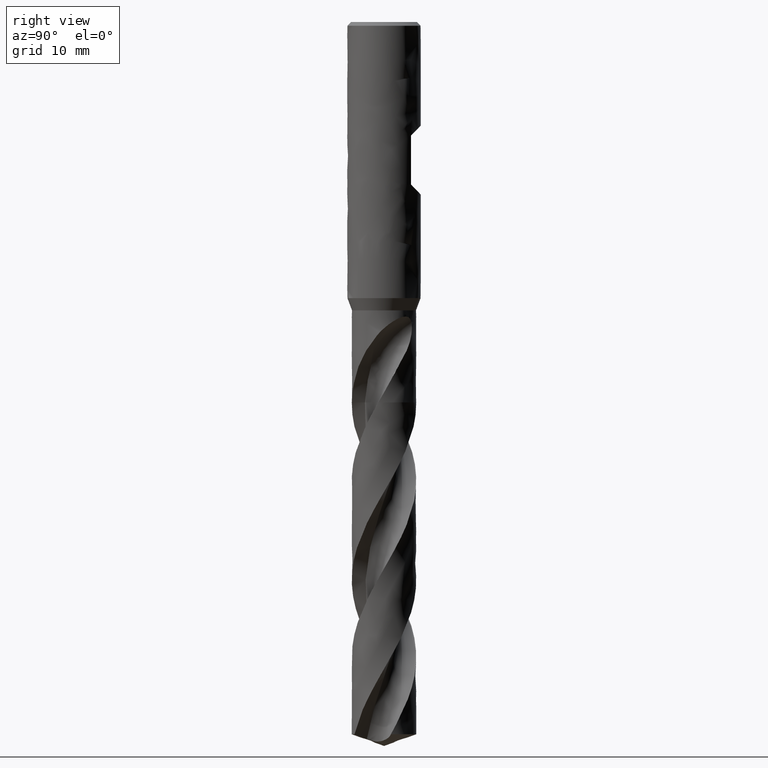
[diagram: clean part render]
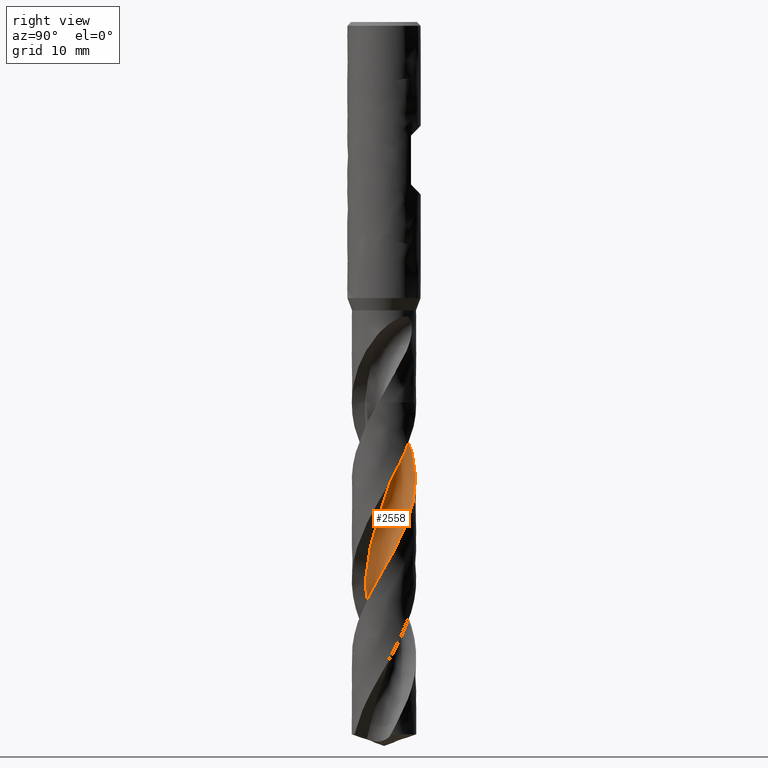
[diagram: same view with one face highlighted and labeled with its STEP entity id]
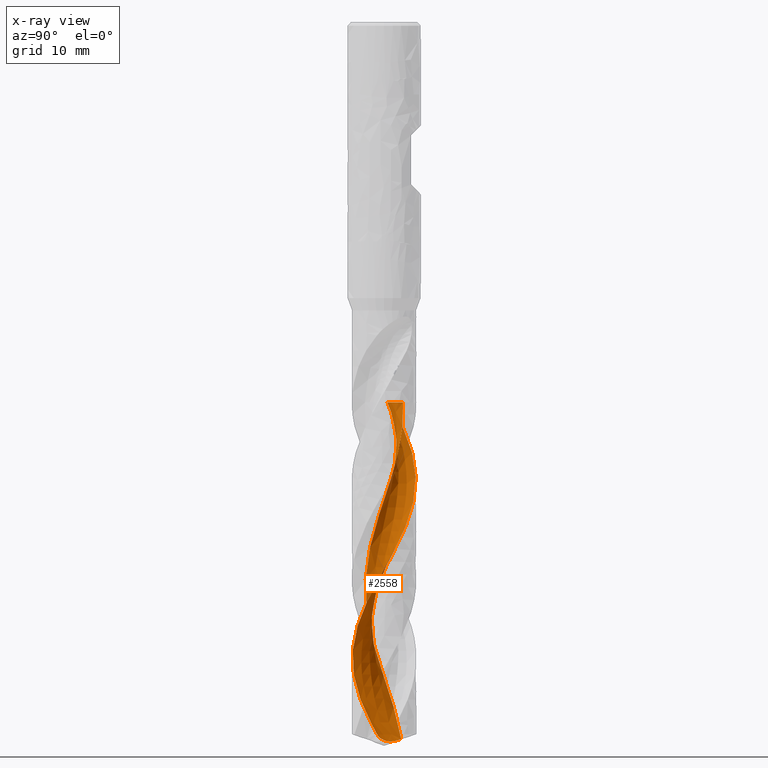
[diagram: x-ray of the same camera — body ghosted, the highlighted face saturated]
A machine part, right view. The second image highlights one B-rep face of the part: STEP entity #2558.
The next image is the same camera in x-ray: the body ghosted, the highlighted face saturated — about 0% of this face is hidden behind the body in this view.
In plain terms, the highlighted face is a freeform B-spline surface patch.
Its self-contained STEP definition (entity closure, byte-faithful):
#1854 = VERTEX_POINT('', #1855);
#1855 = CARTESIAN_POINT('', (-5.16869283402966, 0.920388172159186, -62.));
#1961 = VERTEX_POINT('', #1962);
#1962 = CARTESIAN_POINT('', (-0.511414322767349, 3.11733138550825, -62.));
#1968 = EDGE_CURVE('', #1961, #1854, #1969, .T.);
#1969 = B_SPLINE_CURVE_WITH_KNOTS('', 3, (#1970, #1971, #1972, #1973, #1974, #1975, #1976, #1977, #1978, #1979, #1980, #1981, #1982, #1983, #1984, #1985, #1986, #1987, #1988, #1989, #1990, #1991, #1992, #1993, #1994, #1995, #1996, #1997, #1998, #1999, #2000, #2001, #2002, #2003, #2004, #2005, #2006, #2007, #2008, #2009, #2010, #2011, #2012, #2013, #2014, #2015, #2016, #2017, #2018, #2019, #2020, #2021, #2022, #2023, #2024, #2025, #2026, #2027, #2028, #2029, #2030, #2031, #2032, #2033, #2034, #2035, #2036), .UNSPECIFIED., .F., .U., (4, 3, 3, 3, 3, 3, 3, 3, 3, 3, 3, 3, 3, 3, 3, 3, 3, 3, 3, 3, 3, 3, 4), (0., 0.297281239322821, 0.594216793688359, 0.890814894886685, 1.18708203724347, 1.48302310571936, 1.77864147066501, 2.07393905318299, 2.3689163637792, 2.66357251590869, 2.957905215056, 3.01622894029931, 3.05513527343747, 3.35239642316347, 3.64931240996256, 3.94589136181939, 4.24213967759422, 4.53806215307657, 4.83366207396016, 5.12894127961066, 5.42390020024278, 5.7185378690539, 6.01135604850266), .UNSPECIFIED.);
#1970 = CARTESIAN_POINT('', (-0.51141432276735, 3.11733138550824, -62.));
#1971 = CARTESIAN_POINT('', (-0.529186559039711, 3.01984436995447, -62.));
#1972 = CARTESIAN_POINT('', (-0.551565366921387, 2.92308632096025, -62.));
#1973 = CARTESIAN_POINT('', (-0.57840300758802, 2.8276960089409, -62.));
#1974 = CARTESIAN_POINT('', (-0.605209440874435, 2.7324166188082, -62.));
#1975 = CARTESIAN_POINT('', (-0.636523206984963, 2.63829247680013, -62.));
#1976 = CARTESIAN_POINT('', (-0.672138060620712, 2.5459435230968, -62.));
#1977 = CARTESIAN_POINT('', (-0.707712439665317, 2.45369951959716, -62.));
#1978 = CARTESIAN_POINT('', (-0.747656083378586, 2.36302449028576, -62.));
#1979 = CARTESIAN_POINT('', (-0.791706503196861, 2.27451430364103, -62.));
#1980 = CARTESIAN_POINT('', (-0.835707769376413, 2.18610288104341, -62.));
#1981 = CARTESIAN_POINT('', (-0.883902854240644, 2.09965812263391, -62.));
#1982 = CARTESIAN_POINT('', (-0.935975750361248, 2.015746832805, -62.));
#1983 = CARTESIAN_POINT('', (-0.98799133465445, 1.9319278963829, -62.));
#1984 = CARTESIAN_POINT('', (-1.04398967810335, 1.85045395028763, -62.));
#1985 = CARTESIAN_POINT('', (-1.10360441502624, 1.77185803274792, -62.));
#1986 = CARTESIAN_POINT('', (-1.16315414614863, 1.69334781869027, -62.));
#1987 = CARTESIAN_POINT('', (-1.22644202479267, 1.61753841116378, -62.));
#1988 = CARTESIAN_POINT('', (-1.29305489498275, 1.54492470919806, -62.));
#1989 = CARTESIAN_POINT('', (-1.3595954819836, 1.472389802065, -62.));
#1990 = CARTESIAN_POINT('', (-1.42959839312361, 1.4028860705785, -62.));
#1991 = CARTESIAN_POINT('', (-1.50260762498313, 1.33686626647017, -62.));
#1992 = CARTESIAN_POINT('', (-1.57553767296719, 1.27091806568943, -62.));
#1993 = CARTESIAN_POINT('', (-1.65162560854623, 1.20830325957225, -62.));
#1994 = CARTESIAN_POINT('', (-1.73037686285508, 1.14942884212326, -62.));
#1995 = CARTESIAN_POINT('', (-1.80904237622326, 1.09061852457944, -62.));
#1996 = CARTESIAN_POINT('', (-1.8905355613851, 1.03541322482452, -62.));
#1997 = CARTESIAN_POINT('', (-1.97432786648437, 0.984170995665014, -62.));
#1998 = CARTESIAN_POINT('', (-2.05802819023259, 0.932985016652389, -62.));
#1999 = CARTESIAN_POINT('', (-2.14420323503588, 0.885642914830787, -62.));
#2000 = CARTESIAN_POINT('', (-2.23229530766461, 0.842451070889916, -62.));
#2001 = CARTESIAN_POINT('', (-2.24975126092769, 0.833892357413441, -62.));
#2002 = CARTESIAN_POINT('', (-2.26728679523967, 0.825494080506892, -62.));
#2003 = CARTESIAN_POINT('', (-2.28489744765282, 0.817258377605598, -62.));
#2004 = CARTESIAN_POINT('', (-2.29664508391419, 0.811764541274533, -62.));
#2005 = CARTESIAN_POINT('', (-2.30842669954178, 0.806342786166937, -62.));
#2006 = CARTESIAN_POINT('', (-2.32024096017541, 0.80099372633902, -62.));
#2007 = CARTESIAN_POINT('', (-2.41050700212401, 0.760124604369777, -62.));
#2008 = CARTESIAN_POINT('', (-2.50279521659244, 0.723457484164053, -62.));
#2009 = CARTESIAN_POINT('', (-2.59649642400792, 0.691234399450103, -62.));
#2010 = CARTESIAN_POINT('', (-2.69008883085181, 0.65904873036966, -62.));
#2011 = CARTESIAN_POINT('', (-2.78529651375301, 0.631226066010134, -62.));
#2012 = CARTESIAN_POINT('', (-2.8814924783949, 0.607949633731912, -62.));
#2013 = CARTESIAN_POINT('', (-2.97757924918119, 0.584699622971418, -62.));
#2014 = CARTESIAN_POINT('', (-3.07486262214045, 0.56593455567992, -62.));
#2015 = CARTESIAN_POINT('', (-3.1727033846562, 0.551777730088107, -62.));
#2016 = CARTESIAN_POINT('', (-3.27043507103496, 0.537636686996428, -62.));
#2017 = CARTESIAN_POINT('', (-3.36893659595095, 0.528062674143817, -62.));
#2018 = CARTESIAN_POINT('', (-3.46756218267713, 0.523118458829464, -62.));
#2019 = CARTESIAN_POINT('', (-3.56607929219579, 0.518179681603629, -62.));
#2020 = CARTESIAN_POINT('', (-3.66493512691172, 0.51784972575304, -62.));
#2021 = CARTESIAN_POINT('', (-3.76348300980208, 0.522130749722537, -62.));
#2022 = CARTESIAN_POINT('', (-3.86192347579966, 0.52640710738892, -62.));
#2023 = CARTESIAN_POINT('', (-3.9602709637005, 0.535293686049394, -62.));
#2024 = CARTESIAN_POINT('', (-4.05788352134368, 0.548732479561695, -62.));
#2025 = CARTESIAN_POINT('', (-4.1553901728889, 0.562156692468626, -62.));
#2026 = CARTESIAN_POINT('', (-4.2523752998087, 0.580152386835794, -62.));
#2027 = CARTESIAN_POINT('', (-4.34820721331354, 0.602602352130478, -62.));
#2028 = CARTESIAN_POINT('', (-4.44393517934904, 0.625027966277472, -62.));
#2029 = CARTESIAN_POINT('', (-4.538719932175, 0.65194678115691, -62.));
#2030 = CARTESIAN_POINT('', (-4.63194545097396, 0.683183847213586, -62.));
#2031 = CARTESIAN_POINT('', (-4.7250694340485, 0.714386891704371, -62.));
#2032 = CARTESIAN_POINT('', (-4.81683899690909, 0.749966252850298, -62.));
#2033 = CARTESIAN_POINT('', (-4.90665901129473, 0.78969119746855, -62.));
#2034 = CARTESIAN_POINT('', (-4.99592435607089, 0.82917082683419, -62.));
#2035 = CARTESIAN_POINT('', (-5.08345583027466, 0.872829745633427, -62.));
#2036 = CARTESIAN_POINT('', (-5.16869283366124, 0.920388172819487, -62.));
#2148 = EDGE_CURVE('', #2149, #1854, #2151, .T.);
#2149 = VERTEX_POINT('', #2150);
#2150 = CARTESIAN_POINT('', (-4.2160817945425, 3.12844279182588, -66.2069655611149));
#2151 = B_SPLINE_CURVE_WITH_KNOTS('', 3, (#2152, #2153, #2154, #2155, #2156, #2157, #2158, #2159, #2160, #2161, #2162, #2163, #2164, #2165, #2166, #2167, #2168, #2169, #2170), .UNSPECIFIED., .F., .U., (4, 3, 3, 3, 3, 3, 4), (0., 0.996962139515723, 1.99364170083914, 2.99004708487693, 3.98615731582775, 4.28158842762479, 4.85609640100197), .UNSPECIFIED.);
#2152 = CARTESIAN_POINT('', (-4.21608179454249, 3.12844279182589, -66.2069655611149));
#2153 = CARTESIAN_POINT('', (-4.31498788157669, 2.99515086972207, -65.9190629632584));
#2154 = CARTESIAN_POINT('', (-4.40760196109266, 2.85711449780675, -65.6310878701483));
#2155 = CARTESIAN_POINT('', (-4.49345220451459, 2.71502988671266, -65.3432011643113));
#2156 = CARTESIAN_POINT('', (-4.57927811460868, 2.57298554797291, -65.0553960568637));
#2157 = CARTESIAN_POINT('', (-4.65839128829379, 2.42681640480214, -64.7675174718451));
#2158 = CARTESIAN_POINT('', (-4.73038496939341, 2.27726986572447, -64.4797203151252));
#2159 = CARTESIAN_POINT('', (-4.80235884570036, 2.12776446551004, -64.1920023287287));
#2160 = CARTESIAN_POINT('', (-4.86726117376034, 1.97479523071185, -63.9042077677993));
#2161 = CARTESIAN_POINT('', (-4.92477063174782, 1.81910258772656, -63.6165166027939));
#2162 = CARTESIAN_POINT('', (-4.98226305440579, 1.66345606368536, -63.3289106570544));
#2163 = CARTESIAN_POINT('', (-5.03239520643846, 1.50499822601956, -63.0412474931458));
#2164 = CARTESIAN_POINT('', (-5.07488446156996, 1.34463664300591, -62.7536240848049));
#2165 = CARTESIAN_POINT('', (-5.08748612702113, 1.29707584171383, -62.6683193658444));
#2166 = CARTESIAN_POINT('', (-5.09941763542269, 1.24934360747475, -62.5830084273118));
#2167 = CARTESIAN_POINT('', (-5.110674765344, 1.20145888105921, -62.4976968989545));
#2168 = CARTESIAN_POINT('', (-5.13256586157215, 1.10834019440032, -62.3317964527754));
#2169 = CARTESIAN_POINT('', (-5.15191339942163, 1.01461770057016, -62.1658689678368));
#2170 = CARTESIAN_POINT('', (-5.16869283402966, 0.920388172159186, -62.));
#2173 = VERTEX_POINT('', #2174);
#2174 = CARTESIAN_POINT('', (-4.84328830628847, -2.02609436655092, -114.411148209227));
#2361 = EDGE_CURVE('', #2173, #2362, #2364, .T.);
#2362 = VERTEX_POINT('', #2363);
#2363 = CARTESIAN_POINT('', (-5.12901679958836, -1.12057425882463, -116.089156270102));
#2364 = B_SPLINE_CURVE_WITH_KNOTS('', 3, (#2365, #2366, #2367, #2368, #2369, #2370, #2371), .UNSPECIFIED., .F., .U., (4, 3, 4), (0., 0.996303851417017, 1.92851427668865), .UNSPECIFIED.);
#2365 = CARTESIAN_POINT('', (-4.84328830628849, -2.02609436655087, -114.411148209227));
#2366 = CARTESIAN_POINT('', (-4.90648284031596, -1.87503064872532, -114.700072882336));
#2367 = CARTESIAN_POINT('', (-4.96261334637962, -1.72098062366997, -114.989082592419));
#2368 = CARTESIAN_POINT('', (-5.01140923554839, -1.56469724670904, -115.278021565199));
#2369 = CARTESIAN_POINT('', (-5.05706602642482, -1.41846776752714, -115.548372746026));
#2370 = CARTESIAN_POINT('', (-5.09632360177884, -1.27021535532205, -115.818793437661));
#2371 = CARTESIAN_POINT('', (-5.12901679958836, -1.12057425882463, -116.089156270102));
#2558 = ADVANCED_FACE('', (#2559), #2813, .T.);
#2559 = FACE_OUTER_BOUND('', #2560, .T.);
#2560 = EDGE_LOOP('', (#2561, #2562, #2627, #2705, #2754, #2755, #2812));
#2561 = ORIENTED_EDGE('', *, *, #1968, .F.);
#2562 = ORIENTED_EDGE('', *, *, #2563, .F.);
#2563 = EDGE_CURVE('', #2564, #1961, #2566, .T.);
#2564 = VERTEX_POINT('', #2565);
#2565 = CARTESIAN_POINT('', (-1.43173699643083, 2.798172611918, -116.855972548912));
#2566 = (
   BOUNDED_CURVE ()
   B_SPLINE_CURVE (3, (#2567, #2568, #2569, #2570, #2571, #2572, #2573, #2574, #2575, #2576, #2577, #2578, #2579, #2580, #2581, #2582, #2583, #2584, #2585, #2586, #2587, #2588, #2589, #2590, #2591, #2592, #2593, #2594, #2595, #2596, #2597, #2598, #2599, #2600, #2601, #2602, #2603, #2604, #2605, #2606, #2607, #2608, #2609, #2610, #2611, #2612, #2613, #2614, #2615, #2616, #2617, #2618, #2619, #2620, #2621, #2622, #2623, #2624, #2625, #2626), .UNSPECIFIED., .F., .U.)
   B_SPLINE_CURVE_WITH_KNOTS ((4, 1, 1, 1, 1, 1, 1, 1, 1, 1, 1, 1, 1, 1, 1, 1, 1, 1, 1, 1, 1, 1, 1, 1, 1, 1, 1, 1, 1, 1, 1, 1, 1, 1, 1, 1, 1, 1, 1, 1, 1, 1, 1, 1, 1, 1, 1, 1, 1, 1, 1, 1, 1, 1, 1, 1, 1, 4), (1.19402745108839, 1.94583333333333, 2.91875, 3.89166666666667, 4.86458333333333, 5.8375, 6.81041666666667, 7.78333333333333, 8.75625, 9.72916666666667, 10.7020833333333, 11.675, 12.6479166666667, 13.6208333333333, 14.59375, 15.5666666666667, 16.5395833333333, 17.5125, 18.4854166666667, 19.4583333333333, 20.43125, 21.4041666666667, 22.3770833333333, 23.35, 24.3229166666667, 25.2958333333333, 26.26875, 27.2416666666667, 28.2145833333333, 29.1875, 30.1604166666667, 31.1333333333333, 32.10625, 33.0791666666667, 34.0520833333333, 35.025, 35.9979166666667, 36.9708333333333, 37.94375, 38.9166666666667, 39.8895833333333, 40.8625, 41.8354166666667, 42.8083333333333, 43.78125, 44.7541666666667, 45.7270833333333, 46.7, 47.6729166666667, 48.6458333333333, 49.61875, 50.5916666666667, 51.5645833333333, 52.5375, 53.5104166666667, 54.4833333333333, 55.45625, 56.05), .UNSPECIFIED.)
   CURVE ()
   GEOMETRIC_REPRESENTATION_ITEM ()
   RATIONAL_B_SPLINE_CURVE ((1., 1., 1., 1., 1., 1., 1., 1., 1., 1., 1., 1., 1., 1., 1., 1., 1., 1., 1., 1., 1., 1., 1., 1., 1., 1., 1., 1., 1., 1., 1., 1., 1., 1., 1., 1., 1., 1., 1., 1., 1., 1., 1., 1., 1., 1., 1., 1., 1., 1., 1., 1., 1., 1., 1., 1., 1., 1., 1., 1.))
   REPRESENTATION_ITEM ('')
);
#2567 = CARTESIAN_POINT('', (-1.43173699643083, 2.798172611918, -116.855972548912));
#2568 = CARTESIAN_POINT('', (-1.50708413934639, 2.75714332259, -116.605370588163));
#2569 = CARTESIAN_POINT('', (-1.67594040293153, 2.65610964579416, -116.030463071859));
#2570 = CARTESIAN_POINT('', (-1.92374487196312, 2.47451761707428, -115.13125));
#2571 = CARTESIAN_POINT('', (-2.16915056103738, 2.25159016984832, -114.158333333333));
#2572 = CARTESIAN_POINT('', (-2.38928230952023, 2.0047736307214, -113.185416666667));
#2573 = CARTESIAN_POINT('', (-2.5818642853802, 1.73687888481437, -112.2125));
#2574 = CARTESIAN_POINT('', (-2.74492629783282, 1.45092678953253, -111.239583333333));
#2575 = CARTESIAN_POINT('', (-2.87682417387054, 1.15011738335445, -110.266666666667));
#2576 = CARTESIAN_POINT('', (-2.97625501727196, 0.837794792105319, -109.29375));
#2577 = CARTESIAN_POINT('', (-3.04226931327047, 0.517411553480893, -108.320833333333));
#2578 = CARTESIAN_POINT('', (-3.07427921818677, 0.192491826561483, -107.347916666667));
#2579 = CARTESIAN_POINT('', (-3.07206312292206, -0.133405897940567, -106.375));
#2580 = CARTESIAN_POINT('', (-3.03576642532715, -0.456726274244995, -105.402083333333));
#2581 = CARTESIAN_POINT('', (-2.96589853468032, -0.773954371121447, -104.429166666667));
#2582 = CARTESIAN_POINT('', (-2.86332615443983, -1.08165236705711, -103.45625));
#2583 = CARTESIAN_POINT('', (-2.72926292903106, -1.37649530532678, -102.483333333333));
#2584 = CARTESIAN_POINT('', (-2.56525557432069, -1.65530555601511, -101.510416666667));
#2585 = CARTESIAN_POINT('', (-2.37316664522208, -1.9150856459814, -100.5375));
#2586 = CARTESIAN_POINT('', (-2.15515412569395, -2.15304913532314, -99.5645833333333));
#2587 = CARTESIAN_POINT('', (-1.91364805638878, -2.36664923922806, -98.5916666666667));
#2588 = CARTESIAN_POINT('', (-1.65132444300958, -2.55360491718454, -97.61875));
#2589 = CARTESIAN_POINT('', (-1.37107671383931, -2.7119241770747, -96.6458333333333));
#2590 = CARTESIAN_POINT('', (-1.07598501769604, -2.83992436947587, -95.6729166666667));
#2591 = CARTESIAN_POINT('', (-0.769283673551941, -2.93624927727874, -94.7));
#2592 = CARTESIAN_POINT('', (-0.454327100070884, -2.99988283722421, -93.7270833333333));
#2593 = CARTESIAN_POINT('', (-0.134554567229001, -3.03015936287652, -92.7541666666667));
#2594 = CARTESIAN_POINT('', (0.186545877126585, -3.02677017259165, -91.78125));
#2595 = CARTESIAN_POINT('', (0.505473945538053, -2.98976656090212, -90.8083333333333));
#2596 = CARTESIAN_POINT('', (0.818753749746397, -2.91955908711158, -89.8354166666667));
#2597 = CARTESIAN_POINT('', (1.12297017514259, -2.81691319046008, -88.8625));
#2598 = CARTESIAN_POINT('', (1.41480462870484, -2.68294117667065, -87.8895833333333));
#2599 = CARTESIAN_POINT('', (1.69106980438171, -2.51909065570416, -86.9166666666667));
#2600 = CARTESIAN_POINT('', (1.94874311930337, -2.32712954482485, -85.94375));
#2601 = CARTESIAN_POINT('', (2.18499848685136, -2.10912778430842, -84.9708333333333));
#2602 = CARTESIAN_POINT('', (2.39723610838152, -1.86743594501426, -83.9979166666667));
#2603 = CARTESIAN_POINT('', (2.58310998413933, -1.6046609373082, -83.025));
#2604 = CARTESIAN_POINT('', (2.74055286547302, -1.32363905919114, -82.0520833333333));
#2605 = CARTESIAN_POINT('', (2.86779839465158, -1.02740664770476, -81.0791666666667));
#2606 = CARTESIAN_POINT('', (2.96340020522656, -0.719168621509406, -80.10625));
#2607 = CARTESIAN_POINT('', (3.02624778471024, -0.402265223740003, -79.1333333333333));
#2608 = CARTESIAN_POINT('', (3.05557893212927, -0.080137292642406, -78.1604166666667));
#2609 = CARTESIAN_POINT('', (3.05098867549012, 0.243709597098035, -77.1875));
#2610 = CARTESIAN_POINT('', (3.01243454807083, 0.565741767172893, -76.2145833333333));
#2611 = CARTESIAN_POINT('', (2.94023815746196, 0.882434478420146, -75.2416666666667));
#2612 = CARTESIAN_POINT('', (2.83508301702341, 1.19030901389145, -74.26875));
#2613 = CARTESIAN_POINT('', (2.69800864590898, 1.48596942983225, -73.2958333333333));
#2614 = CARTESIAN_POINT('', (2.5304009795104, 1.76613860562429, -72.3229166666667));
#2615 = CARTESIAN_POINT('', (2.33397917124381, 2.02769322071215, -71.35));
#2616 = CARTESIAN_POINT('', (2.11077889197609, 2.26769732422187, -70.3770833333333));
#2617 = CARTESIAN_POINT('', (1.86313230719966, 2.48343406520488, -69.4041666666667));
#2618 = CARTESIAN_POINT('', (1.59364480086393, 2.67243557546726, -68.43125));
#2619 = CARTESIAN_POINT('', (1.30516908826387, 2.83250948943934, -67.4583333333333));
#2620 = CARTESIAN_POINT('', (1.00077537127491, 2.96176630194197, -66.4854166666667));
#2621 = CARTESIAN_POINT('', (0.683723755119203, 3.05863053577998, -65.5125));
#2622 = CARTESIAN_POINT('', (0.357417041802887, 3.12189803734209, -64.5395833333333));
#2623 = CARTESIAN_POINT('', (0.0254170218424676, 3.15060572587411, -63.5666666666667));
#2624 = CARTESIAN_POINT('', (-0.265369222191979, 3.14536707020401, -62.7201388888889));
#2625 = CARTESIAN_POINT('', (-0.443933799780051, 3.12652648376175, -62.1979166666667));
#2626 = CARTESIAN_POINT('', (-0.511414322767349, 3.11733138550824, -62.));
#2627 = ORIENTED_EDGE('', *, *, #2628, .T.);
#2628 = EDGE_CURVE('', #2564, #2629, #2631, .T.);
#2629 = VERTEX_POINT('', #2630);
#2630 = CARTESIAN_POINT('', (-2.57454403220337, 7.32568325344306E-15, -117.06294260547));
#2631 = B_SPLINE_CURVE_WITH_KNOTS('', 3, (#2632, #2633, #2634, #2635, #2636, #2637, #2638, #2639, #2640, #2641, #2642, #2643, #2644, #2645, #2646, #2647, #2648, #2649, #2650, #2651, #2652, #2653, #2654, #2655, #2656, #2657, #2658, #2659, #2660, #2661, #2662, #2663, #2664, #2665, #2666, #2667, #2668, #2669, #2670, #2671, #2672, #2673, #2674, #2675, #2676, #2677, #2678, #2679, #2680, #2681, #2682, #2683, #2684, #2685, #2686, #2687, #2688, #2689, #2690, #2691, #2692, #2693, #2694, #2695, #2696, #2697, #2698, #2699, #2700, #2701, #2702, #2703, #2704), .UNSPECIFIED., .F., .U., (4, 3, 3, 3, 3, 3, 3, 3, 3, 3, 3, 3, 3, 3, 3, 3, 3, 3, 3, 3, 3, 3, 3, 3, 4), (0., 0.197298670565254, 0.3944201781803, 0.591302193027381, 0.787881387044597, 0.918885666361749, 1.0497846969885, 1.18058531742422, 1.31130508350421, 1.44197316278002, 1.57262878485429, 1.70331661263018, 1.83407952934433, 1.96495074558598, 2.09594789289301, 2.22707113421385, 2.35830554268903, 2.4896262588427, 2.6210042706516, 2.75241114339977, 2.88382199452604, 3.01521680710975, 3.05414241573721, 3.09310712153861, 3.26286171113555), .UNSPECIFIED.);
#2632 = CARTESIAN_POINT('', (-1.43173699643083, 2.798172611918, -116.855972548912));
#2633 = CARTESIAN_POINT('', (-1.41679531161403, 2.73801239073624, -116.877942755977));
#2634 = CARTESIAN_POINT('', (-1.4042668620717, 2.67712501276557, -116.899715993961));
#2635 = CARTESIAN_POINT('', (-1.39426790762982, 2.61575515794712, -116.9211392987));
#2636 = CARTESIAN_POINT('', (-1.38427793167859, 2.55444040975712, -116.942543366534));
#2637 = CARTESIAN_POINT('', (-1.37679788170224, 2.49254871279439, -116.963631709937));
#2638 = CARTESIAN_POINT('', (-1.37192086545935, 2.43034165956598, -116.984221254034));
#2639 = CARTESIAN_POINT('', (-1.36704977454716, 2.36821018479444, -117.004785782866));
#2640 = CARTESIAN_POINT('', (-1.36476804915309, 2.30566209613093, -117.024886680406));
#2641 = CARTESIAN_POINT('', (-1.36513863331127, 2.242975001745, -117.044306731766));
#2642 = CARTESIAN_POINT('', (-1.36550864748034, 2.1803843252973, -117.063696913481));
#2643 = CARTESIAN_POINT('', (-1.36852430883233, 2.11754643878133, -117.082441873249));
#2644 = CARTESIAN_POINT('', (-1.37420904184152, 2.05475415640507, -117.100289055665));
#2645 = CARTESIAN_POINT('', (-1.3779974608281, 2.01290813225939, -117.112182772505));
#2646 = CARTESIAN_POINT('', (-1.3829737325934, 1.97104023033988, -117.12368920108));
#2647 = CARTESIAN_POINT('', (-1.38913234289936, 1.92924103931015, -117.13472557294));
#2648 = CARTESIAN_POINT('', (-1.39528600538473, 1.88747542970339, -117.145753078192));
#2649 = CARTESIAN_POINT('', (-1.40262548009329, 1.84574300162496, -117.156320454644));
#2650 = CARTESIAN_POINT('', (-1.41113309144265, 1.80413706133871, -117.166340727191));
#2651 = CARTESIAN_POINT('', (-1.41963430675031, 1.76256240049367, -117.176353466474));
#2652 = CARTESIAN_POINT('', (-1.42930951714809, 1.72107754484944, -117.185828436461));
#2653 = CARTESIAN_POINT('', (-1.44012691470599, 1.67977800738011, -117.194677738633));
#2654 = CARTESIAN_POINT('', (-1.45093762549355, 1.63850399920478, -117.203521570612));
#2655 = CARTESIAN_POINT('', (-1.4628990081004, 1.59737777106579, -117.211748130871));
#2656 = CARTESIAN_POINT('', (-1.47596347080263, 1.55649600828029, -117.219273412828));
#2657 = CARTESIAN_POINT('', (-1.48902276779544, 1.51563041020905, -117.226795719275));
#2658 = CARTESIAN_POINT('', (-1.50319638562225, 1.47497136774071, -117.233623812559));
#2659 = CARTESIAN_POINT('', (-1.51842017220221, 1.43461493750659, -117.239683705205));
#2660 = CARTESIAN_POINT('', (-1.53364250742712, 1.39426235464046, -117.245743020134));
#2661 = CARTESIAN_POINT('', (-1.54992892967103, 1.35417478855134, -117.251039497781));
#2662 = CARTESIAN_POINT('', (-1.56719946224732, 1.31444499023251, -117.25551583123));
#2663 = CARTESIAN_POINT('', (-1.5844742518897, 1.27470539879488, -117.259993268064));
#2664 = CARTESIAN_POINT('', (-1.6027493833146, 1.23528714056654, -117.263653972732));
#2665 = CARTESIAN_POINT('', (-1.6219317644661, 1.19627630302145, -117.266463195544));
#2666 = CARTESIAN_POINT('', (-1.64112516718448, 1.15724305112896, -117.269274032444));
#2667 = CARTESIAN_POINT('', (-1.6612437043383, 1.11858284538318, -117.271234811832));
#2668 = CARTESIAN_POINT('', (-1.68218581628625, 1.08037164868957, -117.272336927838));
#2669 = CARTESIAN_POINT('', (-1.70314527276034, 1.04212880499198, -117.27343995663));
#2670 = CARTESIAN_POINT('', (-1.72494697223319, 1.00430345701426, -117.273683967914));
#2671 = CARTESIAN_POINT('', (-1.74748677781553, 0.966958697653093, -117.273086728555));
#2672 = CARTESIAN_POINT('', (-1.7700482723667, 0.929578003229441, -117.272488914501));
#2673 = CARTESIAN_POINT('', (-1.79336640604332, 0.892649809205135, -117.271048118728));
#2674 = CARTESIAN_POINT('', (-1.81734042241547, 0.856223021469571, -117.268805261649));
#2675 = CARTESIAN_POINT('', (-1.84133751547298, 0.819761170375986, -117.266560245662));
#2676 = CARTESIAN_POINT('', (-1.86600809442358, 0.78377631266965, -117.263510540276));
#2677 = CARTESIAN_POINT('', (-1.89125963066169, 0.748303546285179, -117.259714500259));
#2678 = CARTESIAN_POINT('', (-1.91653257531984, 0.71280070585391, -117.255915241934));
#2679 = CARTESIAN_POINT('', (-1.94240259905377, 0.67778916161586, -117.251366565894));
#2680 = CARTESIAN_POINT('', (-1.96878842414432, 0.643292010159498, -117.246137555482));
#2681 = CARTESIAN_POINT('', (-1.99519160214815, 0.608772171291418, -117.240905106156));
#2682 = CARTESIAN_POINT('', (-2.02212494797915, 0.574749253052647, -117.23498911678));
#2683 = CARTESIAN_POINT('', (-2.04951955165477, 0.541236975816564, -117.228463124592));
#2684 = CARTESIAN_POINT('', (-2.076926107685, 0.507710077065016, -117.221934285093));
#2685 = CARTESIAN_POINT('', (-2.10480649933907, 0.474679236058627, -117.214792320485));
#2686 = CARTESIAN_POINT('', (-2.13310378896879, 0.442151595796017, -117.207110262356));
#2687 = CARTESIAN_POINT('', (-2.16140729490782, 0.409616809906542, -117.199426516643));
#2688 = CARTESIAN_POINT('', (-2.19013862138636, 0.377573048515005, -117.191199738471));
#2689 = CARTESIAN_POINT('', (-2.21925147337719, 0.346023385108805, -117.182499090368));
#2690 = CARTESIAN_POINT('', (-2.24836520676739, 0.314472766528135, -117.173798178851));
#2691 = CARTESIAN_POINT('', (-2.27786995676604, 0.283406013122125, -117.164620669615));
#2692 = CARTESIAN_POINT('', (-2.30772833364656, 0.252824120307889, -117.155029943473));
#2693 = CARTESIAN_POINT('', (-2.33758306634667, 0.222245959978343, -117.145440387868));
#2694 = CARTESIAN_POINT('', (-2.36779973957848, 0.192143962735893, -117.135435085475));
#2695 = CARTESIAN_POINT('', (-2.39834809269206, 0.162518485130244, -117.125070833012));
#2696 = CARTESIAN_POINT('', (-2.4073980179831, 0.153741960973749, -117.122000431471));
#2697 = CARTESIAN_POINT('', (-2.41647752595788, 0.14500683041387, -117.118898338654));
#2698 = CARTESIAN_POINT('', (-2.42558592785068, 0.136313105576921, -117.115765918968));
#2699 = CARTESIAN_POINT('', (-2.43470347829081, 0.127610648697387, -117.112630353057));
#2700 = CARTESIAN_POINT('', (-2.443850169134, 0.118949501003453, -117.109464334566));
#2701 = CARTESIAN_POINT('', (-2.45302534861167, 0.110329678889113, -117.106269181421));
#2702 = CARTESIAN_POINT('', (-2.49299815976669, 0.0727763511961851, -117.092349099137));
#2703 = CARTESIAN_POINT('', (-2.5335199141239, 0.0359988480188692, -117.077874163338));
#2704 = CARTESIAN_POINT('', (-2.57454403220337, 7.27537627263974E-15, -117.06294260547));
#2705 = ORIENTED_EDGE('', *, *, #2706, .T.);
#2706 = EDGE_CURVE('', #2629, #2362, #2707, .T.);
#2707 = B_SPLINE_CURVE_WITH_KNOTS('', 3, (#2708, #2709, #2710, #2711, #2712, #2713, #2714, #2715, #2716, #2717, #2718, #2719, #2720, #2721, #2722, #2723, #2724, #2725, #2726, #2727, #2728, #2729, #2730, #2731, #2732, #2733, #2734, #2735, #2736, #2737, #2738, #2739, #2740, #2741, #2742, #2743, #2744, #2745, #2746, #2747, #2748, #2749, #2750, #2751, #2752, #2753), .UNSPECIFIED., .F., .U., (4, 3, 3, 3, 3, 3, 3, 3, 3, 3, 3, 3, 3, 3, 3, 4), (0., 0.198842993095177, 0.397236759534656, 0.595255386919417, 0.792961110126573, 0.990404450285613, 1.18762561553773, 1.3846562159098, 1.58152088462022, 1.77823866270041, 1.97482412272336, 2.17128825477414, 2.36763915212351, 2.66139378445672, 2.95480744825766, 3.0015344690154), .UNSPECIFIED.);
#2708 = CARTESIAN_POINT('', (-2.57454403220337, 7.27537627263974E-15, -117.06294260547));
#2709 = CARTESIAN_POINT('', (-2.62259786360422, -0.0421674530570481, -117.045452441198));
#2710 = CARTESIAN_POINT('', (-2.67136141258759, -0.0832846018624281, -117.027328723007));
#2711 = CARTESIAN_POINT('', (-2.72077493765029, -0.123340996322254, -117.008701875189));
#2712 = CARTESIAN_POINT('', (-2.77007682753658, -0.163306895261758, -116.990117109198));
#2713 = CARTESIAN_POINT('', (-2.82004637606098, -0.202233295576922, -116.971023496694));
#2714 = CARTESIAN_POINT('', (-2.87063418756679, -0.24010247366292, -116.951526275623));
#2715 = CARTESIAN_POINT('', (-2.92112634352793, -0.27790004562981, -116.932065921482));
#2716 = CARTESIAN_POINT('', (-2.97225389613604, -0.314658774454722, -116.91219576085));
#2717 = CARTESIAN_POINT('', (-3.02397311258826, -0.350353714145433, -116.892001366243));
#2718 = CARTESIAN_POINT('', (-3.07561060360332, -0.38599224956804, -116.871838882324));
#2719 = CARTESIAN_POINT('', (-3.12785687996706, -0.420583315359397, -116.851345581399));
#2720 = CARTESIAN_POINT('', (-3.1806707180652, -0.454095220598246, -116.830591975548));
#2721 = CARTESIAN_POINT('', (-3.23341446483974, -0.487562650868428, -116.809865912624));
#2722 = CARTESIAN_POINT('', (-3.28674327322202, -0.519965728656561, -116.788872609569));
#2723 = CARTESIAN_POINT('', (-3.34061623829038, -0.551266604002987, -116.767671188996));
#2724 = CARTESIAN_POINT('', (-3.39442858231683, -0.582532257755911, -116.746493625514));
#2725 = CARTESIAN_POINT('', (-3.44880326250046, -0.612709369995596, -116.725100652384));
#2726 = CARTESIAN_POINT('', (-3.50369808602468, -0.641754493441492, -116.70354287366));
#2727 = CARTESIAN_POINT('', (-3.5585398674454, -0.670771552047296, -116.682005925131));
#2728 = CARTESIAN_POINT('', (-3.61392090104923, -0.698669372779121, -116.660296495014));
#2729 = CARTESIAN_POINT('', (-3.66979643819619, -0.725399408470949, -116.638458904215));
#2730 = CARTESIAN_POINT('', (-3.72562491909551, -0.752106933145557, -116.616639704203));
#2731 = CARTESIAN_POINT('', (-3.78196816459816, -0.777658659943917, -116.594684243251));
#2732 = CARTESIAN_POINT('', (-3.83877778411162, -0.802001378645091, -116.572632308644));
#2733 = CARTESIAN_POINT('', (-3.89554501511084, -0.826325934019575, -116.550596828095));
#2734 = CARTESIAN_POINT('', (-3.95280024507345, -0.84945278249536, -116.52845630018));
#2735 = CARTESIAN_POINT('', (-4.01049043663788, -0.871324450721816, -116.506247364168));
#2736 = CARTESIAN_POINT('', (-4.0681418241138, -0.893181407432737, -116.484053366528));
#2737 = CARTESIAN_POINT('', (-4.12625137259759, -0.913793821625964, -116.461781858071));
#2738 = CARTESIAN_POINT('', (-4.18476040984824, -0.933100352825784, -116.439467446162));
#2739 = CARTESIAN_POINT('', (-4.24323333668237, -0.952394968483732, -116.417166806189));
#2740 = CARTESIAN_POINT('', (-4.30213074184808, -0.970393649544937, -116.394813570382));
#2741 = CARTESIAN_POINT('', (-4.36138730575061, -0.987031618537035, -116.372441231849));
#2742 = CARTESIAN_POINT('', (-4.42060971634868, -1.00365999801561, -116.350081787909));
#2743 = CARTESIAN_POINT('', (-4.48021828977466, -1.01893685285282, -116.327692894238));
#2744 = CARTESIAN_POINT('', (-4.54013999785336, -1.03279447470969, -116.3053077011));
#2745 = CARTESIAN_POINT('', (-4.6297870509764, -1.05352644318311, -116.271817891434));
#2746 = CARTESIAN_POINT('', (-4.72022121419864, -1.0711003999793, -116.238304874281));
#2747 = CARTESIAN_POINT('', (-4.81115967111679, -1.08527991827227, -116.204881614173));
#2748 = CARTESIAN_POINT('', (-4.90199257343674, -1.09944297803487, -116.1714971493));
#2749 = CARTESIAN_POINT('', (-4.9934407162516, -1.11023611702408, -116.138161012031));
#2750 = CARTESIAN_POINT('', (-5.08516833381318, -1.11741812320462, -116.104991841643));
#2751 = CARTESIAN_POINT('', (-5.09977623664338, -1.11856187959119, -116.099709550105));
#2752 = CARTESIAN_POINT('', (-5.1143928913557, -1.11961424856971, -116.094430859752));
#2753 = CARTESIAN_POINT('', (-5.12901679958836, -1.12057425882464, -116.089156270102));
#2754 = ORIENTED_EDGE('', *, *, #2361, .F.);
#2755 = ORIENTED_EDGE('', *, *, #2756, .T.);
#2756 = EDGE_CURVE('', #2173, #2149, #2757, .T.);
#2757 = B_SPLINE_CURVE_WITH_KNOTS('', 3, (#2758, #2759, #2760, #2761, #2762, #2763, #2764, #2765, #2766, #2767, #2768, #2769, #2770, #2771, #2772, #2773, #2774, #2775, #2776, #2777, #2778, #2779, #2780, #2781, #2782, #2783, #2784, #2785, #2786, #2787, #2788, #2789, #2790, #2791, #2792, #2793, #2794, #2795, #2796, #2797, #2798, #2799, #2800, #2801, #2802, #2803, #2804, #2805, #2806, #2807, #2808, #2809, #2810, #2811), .UNSPECIFIED., .F., .U., (4, 1, 1, 1, 1, 1, 1, 1, 1, 1, 1, 1, 1, 1, 1, 1, 1, 1, 1, 1, 1, 1, 1, 1, 1, 1, 1, 1, 1, 1, 1, 1, 1, 1, 1, 1, 1, 1, 1, 1, 1, 1, 1, 1, 1, 1, 1, 1, 1, 1, 1, 4), (3.63885179077319, 3.89166666666667, 4.86458333333333, 5.8375, 6.81041666666667, 7.78333333333333, 8.75625, 9.72916666666667, 10.7020833333333, 11.675, 12.6479166666667, 13.6208333333333, 14.59375, 15.5666666666667, 16.5395833333333, 17.5125, 18.4854166666667, 19.4583333333333, 20.43125, 21.4041666666667, 22.3770833333333, 23.35, 24.3229166666667, 25.2958333333333, 26.26875, 27.2416666666667, 28.2145833333333, 29.1875, 30.1604166666667, 31.1333333333333, 32.10625, 33.0791666666667, 34.0520833333333, 35.025, 35.9979166666667, 36.9708333333333, 37.94375, 38.9166666666667, 39.8895833333333, 40.8625, 41.8354166666667, 42.8083333333333, 43.78125, 44.7541666666667, 45.7270833333333, 46.7, 47.6729166666667, 48.6458333333333, 49.61875, 50.5916666666667, 51.5645833333333, 51.8430344388851), .UNSPECIFIED.);
#2758 = CARTESIAN_POINT('', (-4.84328830628846, -2.02609436655093, -114.411148209227));
#2759 = CARTESIAN_POINT('', (-4.82365497184593, -2.07009895845775, -114.326876583929));
#2760 = CARTESIAN_POINT('', (-4.72558560278019, -2.28207951730493, -113.918299403076));
#2761 = CARTESIAN_POINT('', (-4.52494624195679, -2.64973772084042, -113.185416666667));
#2762 = CARTESIAN_POINT('', (-4.20964505143332, -3.1061063687314, -112.2125));
#2763 = CARTESIAN_POINT('', (-3.84906477347471, -3.52594273011514, -111.239583333333));
#2764 = CARTESIAN_POINT('', (-3.44734270669084, -3.90483448329654, -110.266666666667));
#2765 = CARTESIAN_POINT('', (-3.00903721836558, -4.23882821168605, -109.29375));
#2766 = CARTESIAN_POINT('', (-2.53907810072587, -4.52446873752134, -108.320833333333));
#2767 = CARTESIAN_POINT('', (-2.0427130050715, -4.75883304539291, -107.347916666667));
#2768 = CARTESIAN_POINT('', (-1.52545097895562, -4.9395585882393, -106.375));
#2769 = CARTESIAN_POINT('', (-0.993003564403993, -5.06486569628415, -105.402083333333));
#2770 = CARTESIAN_POINT('', (-0.451224093762159, -5.1335739031037, -104.429166666667));
#2771 = CARTESIAN_POINT('', (0.0939542088449664, -5.1451120541665, -103.45625));
#2772 = CARTESIAN_POINT('', (0.636580693013072, -5.09952212692785, -102.483333333333));
#2773 = CARTESIAN_POINT('', (1.17074968803419, -4.99745675240272, -101.510416666667));
#2774 = CARTESIAN_POINT('', (1.69066222583394, -4.84017048952571, -100.5375));
#2775 = CARTESIAN_POINT('', (2.19068646718226, -4.62950496391564, -99.5645833333333));
#2776 = CARTESIAN_POINT('', (2.66541623272818, -4.36786804164915, -98.5916666666667));
#2777 = CARTESIAN_POINT('', (3.10972706123573, -4.05820726571477, -97.61875));
#2778 = CARTESIAN_POINT('', (3.51882924349838, -3.70397783749218, -96.6458333333333));
#2779 = CARTESIAN_POINT('', (3.88831731154476, -3.30910547739959, -95.6729166666667));
#2780 = CARTESIAN_POINT('', (4.21421549860765, -2.87794454733263, -94.7));
#2781 = CARTESIAN_POINT('', (4.4930187255737, -2.41523186226471, -93.7270833333333));
#2782 = CARTESIAN_POINT('', (4.72172871388434, -1.92603665901041, -92.7541666666667));
#2783 = CARTESIAN_POINT('', (4.89788487271505, -1.41570722632472, -91.78125));
#2784 = CARTESIAN_POINT('', (5.01958965928173, -0.889814731916324, -90.8083333333333));
#2785 = CARTESIAN_POINT('', (5.08552816485339, -0.354094808325372, -89.8354166666667));
#2786 = CARTESIAN_POINT('', (5.09498173500579, 0.185612519266926, -88.8625));
#2787 = CARTESIAN_POINT('', (5.04783549033497, 0.723423964546926, -87.8895833333333));
#2788 = CARTESIAN_POINT('', (4.94457967275053, 1.25347456203285, -86.9166666666667));
#2789 = CARTESIAN_POINT('', (4.78630480206432, 1.7699790861748, -85.94375));
#2790 = CARTESIAN_POINT('', (4.57469068735482, 2.26729269551227, -84.9708333333333));
#2791 = CARTESIAN_POINT('', (4.31198939699107, 2.73997019674263, -83.9979166666667));
#2792 = CARTESIAN_POINT('', (4.00100234971705, 3.18282333612557, -83.025));
#2793 = CARTESIAN_POINT('', (3.64505174630606, 3.59097554375614, -82.0520833333333));
#2794 = CARTESIAN_POINT('', (3.24794661648568, 3.95991357974015, -81.0791666666667));
#2795 = CARTESIAN_POINT('', (2.8139438086107, 4.28553556000395, -80.10625));
#2796 = CARTESIAN_POINT('', (2.34770429944472, 4.56419487313412, -79.1333333333333));
#2797 = CARTESIAN_POINT('', (1.85424524794442, 4.7927395379888, -78.1604166666667));
#2798 = CARTESIAN_POINT('', (1.33888825969759, 4.96854659453309, -77.1875));
#2799 = CARTESIAN_POINT('', (0.807204367216342, 5.08955116706717, -76.2145833333333));
#2800 = CARTESIAN_POINT('', (0.264956265373145, 5.15426988934138, -75.2416666666667));
#2801 = CARTESIAN_POINT('', (-0.28196162987525, 5.16181843455902, -74.26875));
#2802 = CARTESIAN_POINT('', (-0.827584706383878, 5.11192294949298, -73.2958333333333));
#2803 = CARTESIAN_POINT('', (-1.36594065649939, 5.00492525040949, -72.3229166666667));
#2804 = CARTESIAN_POINT('', (-1.89111231880601, 4.8417816986439, -71.35));
#2805 = CARTESIAN_POINT('', (-2.39730027154619, 4.62405573515399, -70.3770833333333));
#2806 = CARTESIAN_POINT('', (-2.87888439178614, 4.35390411497264, -69.4041666666667));
#2807 = CARTESIAN_POINT('', (-3.33048432864156, 4.03405694611977, -68.43125));
#2808 = CARTESIAN_POINT('', (-3.74701612777218, 3.66779169335893, -67.4583333333333));
#2809 = CARTESIAN_POINT('', (-4.0341146021473, 3.35618969231219, -66.7169051870383));
#2810 = CARTESIAN_POINT('', (-4.18346598183949, 3.17030956767513, -66.2997825962988));
#2811 = CARTESIAN_POINT('', (-4.21608179454249, 3.12844279182589, -66.2069655611149));
#2812 = ORIENTED_EDGE('', *, *, #2148, .T.);
#2813 = (
   BOUNDED_SURFACE ()
   B_SPLINE_SURFACE (3, 2, ((#2814, #2815, #2816, #2817, #2818), (#2819, #2820, #2821, #2822, #2823), (#2824, #2825, #2826, #2827, #2828), (#2829, #2830, #2831, #2832, #2833), (#2834, #2835, #2836, #2837, #2838), (#2839, #2840, #2841, #2842, #2843), (#2844, #2845, #2846, #2847, #2848), (#2849, #2850, #2851, #2852, #2853), (#2854, #2855, #2856, #2857, #2858), (#2859, #2860, #2861, #2862, #2863), (#2864, #2865, #2866, #2867, #2868), (#2869, #2870, #2871, #2872, #2873), (#2874, #2875, #2876, #2877, #2878), (#2879, #2880, #2881, #2882, #2883), (#2884, #2885, #2886, #2887, #2888), (#2889, #2890, #2891, #2892, #2893), (#2894, #2895, #2896, #2897, #2898), (#2899, #2900, #2901, #2902, #2903), (#2904, #2905, #2906, #2907, #2908), (#2909, #2910, #2911, #2912, #2913), (#2914, #2915, #2916, #2917, #2918), (#2919, #2920, #2921, #2922, #2923), (#2924, #2925, #2926, #2927, #2928), (#2929, #2930, #2931, #2932, #2933), (#2934, #2935, #2936, #2937, #2938), (#2939, #2940, #2941, #2942, #2943), (#2944, #2945, #2946, #2947, #2948), (#2949, #2950, #2951, #2952, #2953), (#2954, #2955, #2956, #2957, #2958), (#2959, #2960, #2961, #2962, #2963), (#2964, #2965, #2966, #2967, #2968), (#2969, #2970, #2971, #2972, #2973), (#2974, #2975, #2976, #2977, #2978), (#2979, #2980, #2981, #2982, #2983), (#2984, #2985, #2986, #2987, #2988), (#2989, #2990, #2991, #2992, #2993), (#2994, #2995, #2996, #2997, #2998), (#2999, #3000, #3001, #3002, #3003), (#3004, #3005, #3006, #3007, #3008), (#3009, #3010, #3011, #3012, #3013), (#3014, #3015, #3016, #3017, #3018), (#3019, #3020, #3021, #3022, #3023), (#3024, #3025, #3026, #3027, #3028), (#3029, #3030, #3031, #3032, #3033), (#3034, #3035, #3036, #3037, #3038), (#3039, #3040, #3041, #3042, #3043), (#3044, #3045, #3046, #3047, #3048), (#3049, #3050, #3051, #3052, #3053), (#3054, #3055, #3056, #3057, #3058), (#3059, #3060, #3061, #3062, #3063), (#3064, #3065, #3066, #3067, #3068), (#3069, #3070, #3071, #3072, #3073), (#3074, #3075, #3076, #3077, #3078), (#3079, #3080, #3081, #3082, #3083), (#3084, #3085, #3086, #3087, #3088), (#3089, #3090, #3091, #3092, #3093), (#3094, #3095, #3096, #3097, #3098), (#3099, #3100, #3101, #3102, #3103), (#3104, #3105, #3106, #3107, #3108), (#3109, #3110, #3111, #3112, #3113)), .UNSPECIFIED., .F., .F., .U.)
   B_SPLINE_SURFACE_WITH_KNOTS ((4, 1, 1, 1, 1, 1, 1, 1, 1, 1, 1, 1, 1, 1, 1, 1, 1, 1, 1, 1, 1, 1, 1, 1, 1, 1, 1, 1, 1, 1, 1, 1, 1, 1, 1, 1, 1, 1, 1, 1, 1, 1, 1, 1, 1, 1, 1, 1, 1, 1, 1, 1, 1, 1, 1, 1, 1, 4), (3, 2, 3), (0.776316032075551, 1.94583333333333, 2.91875, 3.89166666666667, 4.86458333333333, 5.8375, 6.81041666666667, 7.78333333333333, 8.75625, 9.72916666666667, 10.7020833333333, 11.675, 12.6479166666667, 13.6208333333333, 14.59375, 15.5666666666667, 16.5395833333333, 17.5125, 18.4854166666667, 19.4583333333333, 20.43125, 21.4041666666667, 22.3770833333333, 23.35, 24.3229166666667, 25.2958333333333, 26.26875, 27.2416666666667, 28.2145833333333, 29.1875, 30.1604166666667, 31.1333333333333, 32.10625, 33.0791666666667, 34.0520833333333, 35.025, 35.9979166666667, 36.9708333333333, 37.94375, 38.9166666666667, 39.8895833333333, 40.8625, 41.8354166666667, 42.8083333333333, 43.78125, 44.7541666666667, 45.7270833333333, 46.7, 47.6729166666667, 48.6458333333333, 49.61875, 50.5916666666667, 51.5645833333333, 52.5375, 53.5104166666667, 54.4833333333333, 55.45625, 56.05), (0., 0.5, 1.), .UNSPECIFIED.)
   GEOMETRIC_REPRESENTATION_ITEM ()
   RATIONAL_B_SPLINE_SURFACE (((1., 0.887010833178222, 1., 0.887010833178222, 1.), (1., 0.887010833178221, 1., 0.887010833178221, 1.), (1., 0.887010833178222, 1., 0.887010833178222, 1.), (1., 0.887010833178221, 1., 0.887010833178221, 1.), (1., 0.887010833178222, 1., 0.887010833178222, 1.), (1., 0.887010833178221, 1., 0.887010833178221, 1.), (1., 0.887010833178222, 1., 0.887010833178222, 1.), (1., 0.887010833178221, 1., 0.887010833178221, 1.), (1., 0.887010833178222, 1., 0.887010833178222, 1.), (1., 0.887010833178221, 1., 0.887010833178221, 1.), (1., 0.887010833178222, 1., 0.887010833178222, 1.), (1., 0.887010833178222, 1., 0.887010833178222, 1.), (1., 0.887010833178221, 1., 0.887010833178221, 1.), (1., 0.887010833178222, 1., 0.887010833178222, 1.), (1., 0.887010833178222, 1., 0.887010833178222, 1.), (1., 0.887010833178221, 1., 0.887010833178221, 1.), (1., 0.887010833178222, 1., 0.887010833178222, 1.), (1., 0.887010833178222, 1., 0.887010833178222, 1.), (1., 0.887010833178221, 1., 0.887010833178221, 1.), (1., 0.887010833178221, 1., 0.887010833178221, 1.), (1., 0.887010833178222, 1., 0.887010833178222, 1.), (1., 0.887010833178222, 1., 0.887010833178222, 1.), (1., 0.887010833178221, 1., 0.887010833178221, 1.), (1., 0.887010833178221, 1., 0.887010833178221, 1.), (1., 0.887010833178222, 1., 0.887010833178222, 1.), (1., 0.887010833178222, 1., 0.887010833178222, 1.), (1., 0.887010833178221, 1., 0.887010833178221, 1.), (1., 0.887010833178222, 1., 0.887010833178222, 1.), (1., 0.887010833178222, 1., 0.887010833178222, 1.), (1., 0.887010833178221, 1., 0.887010833178221, 1.), (1., 0.887010833178222, 1., 0.887010833178222, 1.), (1., 0.887010833178222, 1., 0.887010833178222, 1.), (1., 0.887010833178222, 1., 0.887010833178222, 1.), (1., 0.887010833178221, 1., 0.887010833178221, 1.), (1., 0.887010833178221, 1., 0.887010833178221, 1.), (1., 0.887010833178222, 1., 0.887010833178222, 1.), (1., 0.887010833178222, 1., 0.887010833178222, 1.), (1., 0.887010833178222, 1., 0.887010833178222, 1.), (1., 0.887010833178222, 1., 0.887010833178222, 1.), (1., 0.887010833178222, 1., 0.887010833178222, 1.), (1., 0.887010833178221, 1., 0.887010833178221, 1.), (1., 0.887010833178221, 1., 0.887010833178221, 1.), (1., 0.887010833178222, 1., 0.887010833178222, 1.), (1., 0.887010833178222, 1., 0.887010833178222, 1.), (1., 0.887010833178221, 1., 0.887010833178221, 1.), (1., 0.887010833178222, 1., 0.887010833178222, 1.), (1., 0.887010833178221, 1., 0.887010833178221, 1.), (1., 0.887010833178222, 1., 0.887010833178222, 1.), (1., 0.887010833178222, 1., 0.887010833178222, 1.), (1., 0.887010833178222, 1., 0.887010833178222, 1.), (1., 0.887010833178222, 1., 0.887010833178222, 1.), (1., 0.887010833178222, 1., 0.887010833178222, 1.), (1., 0.887010833178222, 1., 0.887010833178222, 1.), (1., 0.887010833178222, 1., 0.887010833178222, 1.), (1., 0.887010833178221, 1., 0.887010833178221, 1.), (1., 0.887010833178222, 1., 0.887010833178222, 1.), (1., 0.887010833178222, 1., 0.887010833178222, 1.), (1., 0.887010833178221, 1., 0.887010833178221, 1.), (1., 0.887010833178222, 1., 0.887010833178222, 1.), (1., 0.887010833178222, 1., 0.887010833178222, 1.)))
   REPRESENTATION_ITEM ('')
   SURFACE ()
);
#2814 = CARTESIAN_POINT('', (-5.27179882804067, -0.446676472839006, -117.273683967924));
#2815 = CARTESIAN_POINT('', (-3.68711323408636, -0.875947092253068, -117.273683967924));
#2816 = CARTESIAN_POINT('', (-2.42653701292297, 0.175931839476196, -117.273683967924));
#2817 = CARTESIAN_POINT('', (-1.16596079175959, 1.22781077120546, -117.273683967924));
#2818 = CARTESIAN_POINT('', (-1.30457275234637, 2.86374732888755, -117.273683967924));
#2819 = CARTESIAN_POINT('', (-5.24699488037026, -0.669949555540148, -116.883844867505));
#2820 = CARTESIAN_POINT('', (-3.64584509002306, -1.03148028461881, -116.883844867505));
#2821 = CARTESIAN_POINT('', (-2.43131466341342, 0.0727393321406467, -116.883844867505));
#2822 = CARTESIAN_POINT('', (-1.21678423680378, 1.1769589489001, -116.883844867505));
#2823 = CARTESIAN_POINT('', (-1.42468195928162, 2.80519838343838, -116.883844867505));
#2824 = CARTESIAN_POINT('', (-5.17580492774065, -1.07541071253589, -116.16970021153));
#2825 = CARTESIAN_POINT('', (-3.55238072265652, -1.31115159756283, -116.16970021153));
#2826 = CARTESIAN_POINT('', (-2.42811522452603, -0.116535757955923, -116.16970021153));
#2827 = CARTESIAN_POINT('', (-1.30384972639554, 1.07808008165098, -116.16970021153));
#2828 = CARTESIAN_POINT('', (-1.63756953561942, 2.6842279588584, -116.16970021153));
#2829 = CARTESIAN_POINT('', (-5.00553944081928, -1.64707771169934, -115.13125));
#2830 = CARTESIAN_POINT('', (-3.37109135592185, -1.69804706936528, -115.13125));
#2831 = CARTESIAN_POINT('', (-2.39185879445743, -0.38842040187045, -115.13125));
#2832 = CARTESIAN_POINT('', (-1.41262623299302, 0.921206265624379, -115.13125));
#2833 = CARTESIAN_POINT('', (-1.92374487196312, 2.47451761707428, -115.13125));
#2834 = CARTESIAN_POINT('', (-4.79129905453758, -2.16166401397552, -114.158333333333));
#2835 = CARTESIAN_POINT('', (-3.16470861479953, -2.03983951923471, -114.158333333333));
#2836 = CARTESIAN_POINT('', (-2.33152745088332, -0.637538975748655, -114.158333333333));
#2837 = CARTESIAN_POINT('', (-1.49834628696709, 0.764761567737399, -114.158333333333));
#2838 = CARTESIAN_POINT('', (-2.16915056103738, 2.25159016984832, -114.158333333333));
#2839 = CARTESIAN_POINT('', (-4.52494624195679, -2.64973772084042, -113.185416666667));
#2840 = CARTESIAN_POINT('', (-2.92422355698493, -2.35731959085474, -113.185416666667));
#2841 = CARTESIAN_POINT('', (-2.24562165271743, -0.878360182198639, -113.185416666667));
#2842 = CARTESIAN_POINT('', (-1.56701974844993, 0.600599226457459, -113.185416666667));
#2843 = CARTESIAN_POINT('', (-2.38928230952023, 2.0047736307214, -113.185416666667));
#2844 = CARTESIAN_POINT('', (-4.20964505143332, -3.1061063687314, -112.2125));
#2845 = CARTESIAN_POINT('', (-2.65242868474019, -2.64714478049988, -112.2125));
#2846 = CARTESIAN_POINT('', (-2.1352053937548, -1.10829825812308, -112.2125));
#2847 = CARTESIAN_POINT('', (-1.6179821027694, 0.430548264253721, -112.2125));
#2848 = CARTESIAN_POINT('', (-2.5818642853802, 1.73687888481437, -112.2125));
#2849 = CARTESIAN_POINT('', (-3.84906477347471, -3.52594273011514, -111.239583333333));
#2850 = CARTESIAN_POINT('', (-2.35243564746988, -2.90628494015558, -111.239583333333));
#2851 = CARTESIAN_POINT('', (-2.00159839224183, -1.3248970251241, -111.239583333333));
#2852 = CARTESIAN_POINT('', (-1.65076113701377, 0.256490889907368, -111.239583333333));
#2853 = CARTESIAN_POINT('', (-2.74492629783282, 1.45092678953253, -111.239583333333));
#2854 = CARTESIAN_POINT('', (-3.44734270669084, -3.90483448329654, -110.266666666667));
#2855 = CARTESIAN_POINT('', (-2.02764359355537, -3.1320535115711, -110.266666666667));
#2856 = CARTESIAN_POINT('', (-1.84636274832891, -1.52585512492873, -110.266666666667));
#2857 = CARTESIAN_POINT('', (-1.66508190310246, 0.0803432617136341, -110.266666666667));
#2858 = CARTESIAN_POINT('', (-2.87682417387054, 1.15011738335445, -110.266666666667));
#2859 = CARTESIAN_POINT('', (-3.00903721836558, -4.23882821168605, -109.29375));
#2860 = CARTESIAN_POINT('', (-1.6817012487809, -3.32213371324141, -109.29375));
#2861 = CARTESIAN_POINT('', (-1.67128478589536, -1.70904937665731, -109.29375));
#2862 = CARTESIAN_POINT('', (-1.66086832300982, -0.0959650400732232, -109.29375));
#2863 = CARTESIAN_POINT('', (-2.97625501727196, 0.837794792105319, -109.29375));
#2864 = CARTESIAN_POINT('', (-2.53907810072587, -4.52446873752134, -108.320833333333));
#2865 = CARTESIAN_POINT('', (-1.31846757422095, -3.47460113531333, -108.320833333333));
#2866 = CARTESIAN_POINT('', (-1.47835533083716, -1.87255620933127, -108.320833333333));
#2867 = CARTESIAN_POINT('', (-1.63824308745337, -0.27051128334922, -108.320833333333));
#2868 = CARTESIAN_POINT('', (-3.04226931327047, 0.517411553480893, -108.320833333333));
#2869 = CARTESIAN_POINT('', (-2.0427130050715, -4.75883304539291, -107.347916666667));
#2870 = CARTESIAN_POINT('', (-0.941970219911763, -3.58794208565352, -107.347916666667));
#2871 = CARTESIAN_POINT('', (-1.26974781917074, -2.01467091891059, -107.347916666667));
#2872 = CARTESIAN_POINT('', (-1.59752541842971, -0.441399752167655, -107.347916666667));
#2873 = CARTESIAN_POINT('', (-3.07427921818677, 0.192491826561483, -107.347916666667));
#2874 = CARTESIAN_POINT('', (-1.52545097895562, -4.9395585882393, -106.375));
#2875 = CARTESIAN_POINT('', (-0.556362522553072, -3.66106764901199, -106.375));
#2876 = CARTESIAN_POINT('', (-1.04779468569377, -2.13392458202387, -106.375));
#2877 = CARTESIAN_POINT('', (-1.53922684883446, -0.606781515035755, -106.375));
#2878 = CARTESIAN_POINT('', (-3.07206312292206, -0.133405897940567, -106.375));
#2879 = CARTESIAN_POINT('', (-0.993003564403993, -5.06486569628415, -105.402083333333));
#2880 = CARTESIAN_POINT('', (-0.165879401344659, -3.69332330987354, -105.402083333333));
#2881 = CARTESIAN_POINT('', (-0.814962221134494, -2.22909846652086, -105.402083333333));
#2882 = CARTESIAN_POINT('', (-1.46404504092433, -0.764873623168185, -105.402083333333));
#2883 = CARTESIAN_POINT('', (-3.03576642532715, -0.456726274244995, -105.402083333333));
#2884 = CARTESIAN_POINT('', (-0.451224093762159, -5.1335739031037, -104.429166666667));
#2885 = CARTESIAN_POINT('', (0.225207377363934, -3.6844940749336, -104.429166666667));
#2886 = CARTESIAN_POINT('', (-0.573824173575345, -2.29923580870926, -104.429166666667));
#2887 = CARTESIAN_POINT('', (-1.37285572451462, -0.913977542484919, -104.429166666667));
#2888 = CARTESIAN_POINT('', (-2.96589853468032, -0.773954371121447, -104.429166666667));
#2889 = CARTESIAN_POINT('', (0.0939542088449668, -5.1451120541665, -103.45625));
#2890 = CARTESIAN_POINT('', (0.612634121624741, -3.63480506433547, -103.45625));
#2891 = CARTESIAN_POINT('', (-0.327034360620205, -2.34365085242692, -103.45625));
#2892 = CARTESIAN_POINT('', (-1.26670284286515, -1.05249664051838, -103.45625));
#2893 = CARTESIAN_POINT('', (-2.86332615443983, -1.08165236705711, -103.45625));
#2894 = CARTESIAN_POINT('', (0.636580693013073, -5.09952212692785, -102.483333333333));
#2895 = CARTESIAN_POINT('', (0.992189869649416, -3.54491758802372, -102.483333333333));
#2896 = CARTESIAN_POINT('', (-0.0772985721860382, -2.36193507265435, -102.483333333333));
#2897 = CARTESIAN_POINT('', (-1.14678701402149, -1.17895255728498, -102.483333333333));
#2898 = CARTESIAN_POINT('', (-2.72926292903106, -1.37649530532678, -102.483333333333));
#2899 = CARTESIAN_POINT('', (1.17074968803419, -4.99745675240273, -101.510416666667));
#2900 = CARTESIAN_POINT('', (1.35976033490589, -3.41592076656758, -101.510416666667));
#2901 = CARTESIAN_POINT('', (0.1726539522575, -2.35396053407397, -101.510416666667));
#2902 = CARTESIAN_POINT('', (-1.01445243039089, -1.29200030158037, -101.510416666667));
#2903 = CARTESIAN_POINT('', (-2.56525557432069, -1.65530555601511, -101.510416666667));
#2904 = CARTESIAN_POINT('', (1.69066222583394, -4.84017048952571, -100.5375));
#2905 = CARTESIAN_POINT('', (1.71137070430429, -3.24931879897782, -100.5375));
#2906 = CARTESIAN_POINT('', (0.420099185114668, -2.31988036307722, -100.5375));
#2907 = CARTESIAN_POINT('', (-0.871172334074957, -1.39044192717662, -100.5375));
#2908 = CARTESIAN_POINT('', (-2.37316664522208, -1.9150856459814, -100.5375));
#2909 = CARTESIAN_POINT('', (2.19068646718226, -4.62950496391564, -99.5645833333333));
#2910 = CARTESIAN_POINT('', (2.04322686658451, -3.04701402172081, -99.5645833333333));
#2911 = CARTESIAN_POINT('', (0.662346824000194, -2.26012633981858, -99.5645833333333));
#2912 = CARTESIAN_POINT('', (-0.718533218584121, -1.47323865791634, -99.5645833333333));
#2913 = CARTESIAN_POINT('', (-2.15515412569395, -2.15304913532314, -99.5645833333333));
#2914 = CARTESIAN_POINT('', (2.66541623272818, -4.36786804164915, -98.5916666666667));
#2915 = CARTESIAN_POINT('', (2.35175466507332, -2.81128594330124, -98.5916666666667));
#2916 = CARTESIAN_POINT('', (0.896768372912223, -2.17540364480238, -98.5916666666667));
#2917 = CARTESIAN_POINT('', (-0.558217919248875, -1.53952134630353, -98.5916666666667));
#2918 = CARTESIAN_POINT('', (-1.91364805638878, -2.36664923922806, -98.5916666666667));
#2919 = CARTESIAN_POINT('', (3.10972706123573, -4.05820726571477, -97.61875));
#2920 = CARTESIAN_POINT('', (2.63363678978927, -2.54476647700162, -97.61875));
#2921 = CARTESIAN_POINT('', (1.12082451252688, -2.06668282190469, -97.61875));
#2922 = CARTESIAN_POINT('', (-0.3919877647355, -1.58859916680775, -97.61875));
#2923 = CARTESIAN_POINT('', (-1.65132444300958, -2.55360491718454, -97.61875));
#2924 = CARTESIAN_POINT('', (3.51882924349838, -3.70397783749218, -96.6458333333333));
#2925 = CARTESIAN_POINT('', (2.88584694816559, -2.25041163032612, -96.6458333333333));
#2926 = CARTESIAN_POINT('', (1.33209148882583, -1.93518904644009, -96.6458333333333));
#2927 = CARTESIAN_POINT('', (-0.22166397051393, -1.61996646255407, -96.6458333333333));
#2928 = CARTESIAN_POINT('', (-1.37107671383931, -2.7119241770747, -96.6458333333333));
#2929 = CARTESIAN_POINT('', (3.88831731154476, -3.30910547739959, -95.6729166666667));
#2930 = CARTESIAN_POINT('', (3.10568098121521, -1.93146994308574, -95.6729166666667));
#2931 = CARTESIAN_POINT('', (1.52828625968758, -1.78238881264771, -95.6729166666667));
#2932 = CARTESIAN_POINT('', (-0.0491084618400459, -1.63330768220968, -95.6729166666667));
#2933 = CARTESIAN_POINT('', (-1.07598501769604, -2.83992436947587, -95.6729166666667));
#2934 = CARTESIAN_POINT('', (4.21421549860765, -2.87794454733262, -94.7));
#2935 = CARTESIAN_POINT('', (3.29078462250993, -1.59144799659917, -94.7));
#2936 = CARTESIAN_POINT('', (1.70729015187723, -1.60997417956659, -94.7));
#2937 = CARTESIAN_POINT('', (0.12379568124452, -1.628500362534, -94.7));
#2938 = CARTESIAN_POINT('', (-0.769283673551941, -2.93624927727874, -94.7));
#2939 = CARTESIAN_POINT('', (4.4930187255737, -2.41523186226471, -93.7270833333333));
#2940 = CARTESIAN_POINT('', (3.43917763060474, -1.23407334391052, -93.7270833333333));
#2941 = CARTESIAN_POINT('', (1.86717079593297, -1.41984473748681, -93.7270833333333));
#2942 = CARTESIAN_POINT('', (0.295163961261204, -1.6056161310631, -93.7270833333333));
#2943 = CARTESIAN_POINT('', (-0.454327100070884, -2.99988283722421, -93.7270833333333));
#2944 = CARTESIAN_POINT('', (4.72172871388434, -1.92603665901041, -92.7541666666667));
#2945 = CARTESIAN_POINT('', (3.54927406119952, -0.863255235011481, -92.7541666666667));
#2946 = CARTESIAN_POINT('', (2.00620212362827, -1.214087478797, -92.7541666666667));
#2947 = CARTESIAN_POINT('', (0.46313018605702, -1.56491972258252, -92.7541666666667));
#2948 = CARTESIAN_POINT('', (-0.134554567229001, -3.03015936287652, -92.7541666666667));
#2949 = CARTESIAN_POINT('', (4.89788487271505, -1.41570722632472, -91.78125));
#2950 = CARTESIAN_POINT('', (3.61989848307046, -0.483043531600033, -91.78125));
#2951 = CARTESIAN_POINT('', (2.12288223182513, -0.994954776916724, -91.78125));
#2952 = CARTESIAN_POINT('', (0.625865980579794, -1.50686602223341, -91.78125));
#2953 = CARTESIAN_POINT('', (0.186545877126585, -3.02677017259165, -91.78125));
#2954 = CARTESIAN_POINT('', (5.01958965928173, -0.889814731916324, -90.8083333333333));
#2955 = CARTESIAN_POINT('', (3.65029798128087, -0.0975862227397148, -90.8083333333333));
#2956 = CARTESIAN_POINT('', (2.21594893745195, -0.764840694932803, -90.8083333333333));
#2957 = CARTESIAN_POINT('', (0.781599893623033, -1.43209516712589, -90.8083333333333));
#2958 = CARTESIAN_POINT('', (0.505473945538053, -2.98976656090212, -90.8083333333333));
#2959 = CARTESIAN_POINT('', (5.08552816485339, -0.354094808325372, -89.8354166666667));
#2960 = CARTESIAN_POINT('', (3.64014983204192, 0.28891403423692, -89.8354166666667));
#2961 = CARTESIAN_POINT('', (2.2843928708481, -0.526255861397525, -89.8354166666667));
#2962 = CARTESIAN_POINT('', (0.928635909654273, -1.34142575703197, -89.8354166666667));
#2963 = CARTESIAN_POINT('', (0.818753749746397, -2.91955908711158, -89.8354166666667));
#2964 = CARTESIAN_POINT('', (5.09498173500579, 0.185612519266927, -88.8625));
#2965 = CARTESIAN_POINT('', (3.5895647754741, 0.6722439142169, -88.8625));
#2966 = CARTESIAN_POINT('', (2.327467978615, -0.281801164358865, -88.8625));
#2967 = CARTESIAN_POINT('', (1.06537118175591, -1.23584624293463, -88.8625));
#2968 = CARTESIAN_POINT('', (1.12297017514259, -2.81691319046008, -88.8625));
#2969 = CARTESIAN_POINT('', (5.04783549033497, 0.723423964546927, -87.8895833333333));
#2970 = CARTESIAN_POINT('', (3.49908585504781, 1.04822352783655, -87.8895833333333));
#2971 = CARTESIAN_POINT('', (2.34469933218695, -0.0341405259607298, -87.8895833333333));
#2972 = CARTESIAN_POINT('', (1.19031280932609, -1.11650457975801, -87.8895833333333));
#2973 = CARTESIAN_POINT('', (1.41480462870484, -2.68294117667065, -87.8895833333333));
#2974 = CARTESIAN_POINT('', (4.94457967275053, 1.25347456203285, -86.9166666666667));
#2975 = CARTESIAN_POINT('', (3.36968283528001, 1.41275018878905, -86.9166666666667));
#2976 = CARTESIAN_POINT('', (2.33588816436039, 0.21402697122322, -86.9166666666667));
#2977 = CARTESIAN_POINT('', (1.30209349344076, -0.984696246342614, -86.9166666666667));
#2978 = CARTESIAN_POINT('', (1.69106980438171, -2.51909065570416, -86.9166666666667));
#2979 = CARTESIAN_POINT('', (4.78630480206432, 1.7699790861748, -85.94375));
#2980 = CARTESIAN_POINT('', (3.20274225195445, 1.76184140881433, -85.94375));
#2981 = CARTESIAN_POINT('', (2.30111408276905, 0.459995328651736, -85.94375));
#2982 = CARTESIAN_POINT('', (1.39948591358365, -0.841850751510856, -85.94375));
#2983 = CARTESIAN_POINT('', (1.94874311930337, -2.32712954482485, -85.94375));
#2984 = CARTESIAN_POINT('', (4.57469068735482, 2.26729269551227, -84.9708333333333));
#2985 = CARTESIAN_POINT('', (3.00005319133793, 2.09167669149817, -84.9708333333333));
#2986 = CARTESIAN_POINT('', (2.24073443652583, 0.701079965873219, -84.9708333333333));
#2987 = CARTESIAN_POINT('', (1.48141568171374, -0.689516759751733, -84.9708333333333));
#2988 = CARTESIAN_POINT('', (2.18499848685136, -2.10912778430842, -84.9708333333333));
#2989 = CARTESIAN_POINT('', (4.31198939699107, 2.73997019674263, -83.9979166666667));
#2990 = CARTESIAN_POINT('', (2.76378893621124, 2.39863770722332, -83.9979166666667));
#2991 = CARTESIAN_POINT('', (2.1553808397321, 0.934645861857053, -83.9979166666667));
#2992 = CARTESIAN_POINT('', (1.54697274325296, -0.529345983509218, -83.9979166666667));
#2993 = CARTESIAN_POINT('', (2.39723610838152, -1.86743594501426, -83.9979166666667));
#2994 = CARTESIAN_POINT('', (4.00100234971705, 3.18282333612557, -83.025));
#2995 = CARTESIAN_POINT('', (2.49648465665159, 2.67934644673073, -83.025));
#2996 = CARTESIAN_POINT('', (2.04595288303605, 1.158135222783, -83.025));
#2997 = CARTESIAN_POINT('', (1.5954211094205, -0.363076001164726, -83.025));
#2998 = CARTESIAN_POINT('', (2.58310998413933, -1.6046609373082, -83.025));
#2999 = CARTESIAN_POINT('', (3.64505174630606, 3.59097554375614, -82.0520833333333));
#3000 = CARTESIAN_POINT('', (2.20101136203753, 2.93070096963871, -82.0520833333333));
#3001 = CARTESIAN_POINT('', (1.91360909166213, 1.36909439959381, -82.0520833333333));
#3002 = CARTESIAN_POINT('', (1.62620682128674, -0.192512170451101, -82.0520833333333));
#3003 = CARTESIAN_POINT('', (2.74055286547302, -1.32363905919114, -82.0520833333333));
#3004 = CARTESIAN_POINT('', (3.24794661648568, 3.95991357974016, -81.0791666666667));
#3005 = CARTESIAN_POINT('', (1.88054636735025, 3.14990838677271, -81.0791666666667));
#3006 = CARTESIAN_POINT('', (1.7597552150896, 1.56519978532403, -81.0791666666667));
#3007 = CARTESIAN_POINT('', (1.63896406282894, -0.0195088161246441, -81.0791666666667));
#3008 = CARTESIAN_POINT('', (2.86779839465158, -1.02740664770476, -81.0791666666667));
#3009 = CARTESIAN_POINT('', (2.8139438086107, 4.28553556000395, -80.10625));
#3010 = CARTESIAN_POINT('', (1.53854056118558, 3.33451474109031, -80.10625));
#3011 = CARTESIAN_POINT('', (1.58602995959143, 1.74428243146106, -80.10625));
#3012 = CARTESIAN_POINT('', (1.63351935799728, 0.154050121831821, -80.10625));
#3013 = CARTESIAN_POINT('', (2.96340020522656, -0.719168621509406, -80.10625));
#3014 = CARTESIAN_POINT('', (2.34770429944472, 4.56419487313412, -79.1333333333333));
#3015 = CARTESIAN_POINT('', (1.178682794656, 3.48243148112707, -79.1333333333333));
#3016 = CARTESIAN_POINT('', (1.39428829992113, 1.90435113429917, -79.1333333333333));
#3017 = CARTESIAN_POINT('', (1.60989380518625, 0.326270787471277, -79.1333333333333));
#3018 = CARTESIAN_POINT('', (3.02624778471024, -0.402265223740003, -79.1333333333333));
#3019 = CARTESIAN_POINT('', (1.85424524794442, 4.7927395379888, -78.1604166666667));
#3020 = CARTESIAN_POINT('', (0.804861739255412, 3.5919582529921, -78.1604166666667));
#3021 = CARTESIAN_POINT('', (1.18658253032503, 2.04361375632091, -78.1604166666667));
#3022 = CARTESIAN_POINT('', (1.56830332139464, 0.495269259649724, -78.1604166666667));
#3023 = CARTESIAN_POINT('', (3.05557893212927, -0.080137292642406, -78.1604166666667));
#3024 = CARTESIAN_POINT('', (1.33888825969759, 4.96854659453309, -77.1875));
#3025 = CARTESIAN_POINT('', (0.42112558751577, 3.66180177173651, -77.1875));
#3026 = CARTESIAN_POINT('', (0.965141237547586, 2.16049656396679, -77.1875));
#3027 = CARTESIAN_POINT('', (1.5091568875794, 0.659191356197085, -77.1875));
#3028 = CARTESIAN_POINT('', (3.05098867549012, 0.243709597098035, -77.1875));
#3029 = CARTESIAN_POINT('', (0.807204367216342, 5.08955116706717, -76.2145833333333));
#3030 = CARTESIAN_POINT('', (0.0316399926350656, 3.69109057010269, -76.2145833333333));
#3031 = CARTESIAN_POINT('', (0.732346399362973, 2.25366138160248, -76.2145833333333));
#3032 = CARTESIAN_POINT('', (1.43305280609088, 0.816232193102262, -76.2145833333333));
#3033 = CARTESIAN_POINT('', (3.01243454807083, 0.565741767172893, -76.2145833333333));
#3034 = CARTESIAN_POINT('', (0.264956265373145, 5.15426988934138, -75.2416666666667));
#3035 = CARTESIAN_POINT('', (-0.359355337938488, 3.67938546193097, -75.2416666666667));
#3036 = CARTESIAN_POINT('', (0.490708831264663, 2.32202038190118, -75.2416666666667));
#3037 = CARTESIAN_POINT('', (1.34077300046781, 0.964655301871397, -75.2416666666667));
#3038 = CARTESIAN_POINT('', (2.94023815746196, 0.882434478420146, -75.2416666666667));
#3039 = CARTESIAN_POINT('', (-0.281961629875251, 5.16181843455902, -74.26875));
#3040 = CARTESIAN_POINT('', (-0.747590965217779, 3.6266855984664, -74.26875));
#3041 = CARTESIAN_POINT('', (0.242842220896379, 2.36474835508816, -74.26875));
#3042 = CARTESIAN_POINT('', (1.23327540701054, 1.10281111170993, -74.26875));
#3043 = CARTESIAN_POINT('', (2.83508301702341, 1.19030901389145, -74.26875));
#3044 = CARTESIAN_POINT('', (-0.827584706383878, 5.11192294949298, -73.2958333333333));
#3045 = CARTESIAN_POINT('', (-1.12881251623028, 3.53343003828632, -73.2958333333333));
#3046 = CARTESIAN_POINT('', (-0.00856399482120457, 2.38129232323864, -73.2958333333333));
#3047 = CARTESIAN_POINT('', (1.11168452658787, 1.22915460819096, -73.2958333333333));
#3048 = CARTESIAN_POINT('', (2.69800864590898, 1.48596942983225, -73.2958333333333));
#3049 = CARTESIAN_POINT('', (-1.36594065649939, 5.00492525040949, -72.3229166666667));
#3050 = CARTESIAN_POINT('', (-1.49882551072126, 3.40049479455189, -72.3229166666667));
#3051 = CARTESIAN_POINT('', (-0.260772644015603, 2.3713783913171, -72.3229166666667));
#3052 = CARTESIAN_POINT('', (0.977280222690058, 1.34226198808232, -72.3229166666667));
#3053 = CARTESIAN_POINT('', (2.5304009795104, 1.76613860562429, -72.3229166666667));
#3054 = CARTESIAN_POINT('', (-1.89111231880601, 4.8417816986439, -71.35));
#3055 = CARTESIAN_POINT('', (-1.85353975865563, 3.2291853687511, -71.35));
#3056 = CARTESIAN_POINT('', (-0.511027443255388, 2.33501575203477, -71.35));
#3057 = CARTESIAN_POINT('', (0.831484872144857, 1.44084613531843, -71.35));
#3058 = CARTESIAN_POINT('', (2.33397917124381, 2.02769322071215, -71.35));
#3059 = CARTESIAN_POINT('', (-2.39730027154619, 4.62405573515399, -70.3770833333333));
#3060 = CARTESIAN_POINT('', (-2.18901290880169, 3.02122481884291, -70.3770833333333));
#3061 = CARTESIAN_POINT('', (-0.756581963795919, 2.27249779278364, -70.3770833333333));
#3062 = CARTESIAN_POINT('', (0.675848981209852, 1.52377076672437, -70.3770833333333));
#3063 = CARTESIAN_POINT('', (2.11077889197609, 2.26769732422187, -70.3770833333333));
#3064 = CARTESIAN_POINT('', (-2.87888439178614, 4.35390411497264, -69.4041666666667));
#3065 = CARTESIAN_POINT('', (-2.50149259599038, 2.77873747420578, -69.4041666666667));
#3066 = CARTESIAN_POINT('', (-0.99472858076973, 2.18440026675967, -69.4041666666667));
#3067 = CARTESIAN_POINT('', (0.512035434450919, 1.59006305931356, -69.4041666666667));
#3068 = CARTESIAN_POINT('', (1.86313230719966, 2.48343406520488, -69.4041666666667));
#3069 = CARTESIAN_POINT('', (-3.33048432864156, 4.03405694611977, -68.43125));
#3070 = CARTESIAN_POINT('', (-2.78745716153441, 2.5042283769464, -68.43125));
#3071 = CARTESIAN_POINT('', (-1.22282737433322, 2.07157657205221, -68.43125));
#3072 = CARTESIAN_POINT('', (0.341802412867973, 1.63892476715801, -68.43125));
#3073 = CARTESIAN_POINT('', (1.59364480086393, 2.67243557546726, -68.43125));
#3074 = CARTESIAN_POINT('', (-3.74701612777218, 3.66779169335893, -67.4583333333333));
#3075 = CARTESIAN_POINT('', (-3.04365300667922, 2.20055885641396, -67.4583333333333));
#3076 = CARTESIAN_POINT('', (-1.43833371639055, 1.93515001302262, -67.4583333333333));
#3077 = CARTESIAN_POINT('', (0.166985573898112, 1.66974116963129, -67.4583333333333));
#3078 = CARTESIAN_POINT('', (1.30516908826387, 2.83250948943934, -67.4583333333333));
#3079 = CARTESIAN_POINT('', (-4.12375241987266, 3.25890138928836, -66.4854166666667));
#3080 = CARTESIAN_POINT('', (-3.26713385596926, 1.87091762194794, -66.4854166666667));
#3081 = CARTESIAN_POINT('', (-1.63882789231655, 1.77650368676109, -66.4854166666667));
#3082 = CARTESIAN_POINT('', (-0.0105219286638393, 1.68208975157425, -66.4854166666667));
#3083 = CARTESIAN_POINT('', (1.00077537127491, 2.96176630194197, -66.4854166666667));
#3084 = CARTESIAN_POINT('', (-4.4563556960251, 2.81165727369769, -65.5125));
#3085 = CARTESIAN_POINT('', (-3.45528036409722, 1.51879076506187, -65.5125));
#3086 = CARTESIAN_POINT('', (-1.82203289914929, 1.59726590499692, -65.5125));
#3087 = CARTESIAN_POINT('', (-0.18878543420135, 1.67574104493197, -65.5125));
#3088 = CARTESIAN_POINT('', (0.683723755119203, 3.05863053577998, -65.5125));
#3089 = CARTESIAN_POINT('', (-4.74099571303288, 2.33076643916828, -64.5395833333333));
#3090 = CARTESIAN_POINT('', (-3.60587879008406, 1.14791929492028, -64.5395833333333));
#3091 = CARTESIAN_POINT('', (-1.98587081428518, 1.39929939311505, -64.5395833333333));
#3092 = CARTESIAN_POINT('', (-0.365862838486294, 1.65067949130983, -64.5395833333333));
#3093 = CARTESIAN_POINT('', (0.357417041802887, 3.12189803734209, -64.5395833333333));
#3094 = CARTESIAN_POINT('', (-4.97413405136871, 1.82132399403463, -63.5666666666667));
#3095 = CARTESIAN_POINT('', (-3.7169633017944, 0.762288116749293, -63.5666666666667));
#3096 = CARTESIAN_POINT('', (-2.12836837951512, 1.18466408182219, -63.5666666666667));
#3097 = CARTESIAN_POINT('', (-0.539773457235848, 1.60704004689508, -63.5666666666667));
#3098 = CARTESIAN_POINT('', (0.0254170218424676, 3.15060572587411, -63.5666666666667));
#3099 = CARTESIAN_POINT('', (-5.13022483702781, 1.35794693662981, -62.7201388888889));
#3100 = CARTESIAN_POINT('', (-3.77835679139085, 0.417466930952588, -62.7201388888889));
#3101 = CARTESIAN_POINT('', (-2.23256101609413, 0.985415234029314, -62.7201388888889));
#3102 = CARTESIAN_POINT('', (-0.686765240797414, 1.55336353710604, -62.7201388888889));
#3103 = CARTESIAN_POINT('', (-0.265369222191984, 3.14536707020401, -62.7201388888889));
#3104 = CARTESIAN_POINT('', (-5.20133861849687, 1.06456638099759, -62.1979166666666));
#3105 = CARTESIAN_POINT('', (-3.79759551661589, 0.202089639348187, -62.1979166666666));
#3106 = CARTESIAN_POINT('', (-2.28594196461281, 0.857272334999635, -62.1979166666666));
#3107 = CARTESIAN_POINT('', (-0.774288412609729, 1.51245503065108, -62.1979166666666));
#3108 = CARTESIAN_POINT('', (-0.443933799780059, 3.12652648376175, -62.1979166666666));
#3109 = CARTESIAN_POINT('', (-5.2249272379939, 0.952523172978927, -62.));
#3110 = CARTESIAN_POINT('', (-3.80241387608229, 0.120215094434471, -62.));
#3111 = CARTESIAN_POINT('', (-2.30470686727734, 0.808077521235063, -62.));
#3112 = CARTESIAN_POINT('', (-0.806999858472394, 1.49593994803566, -62.));
#3113 = CARTESIAN_POINT('', (-0.511414322767361, 3.11733138550824, -62.));